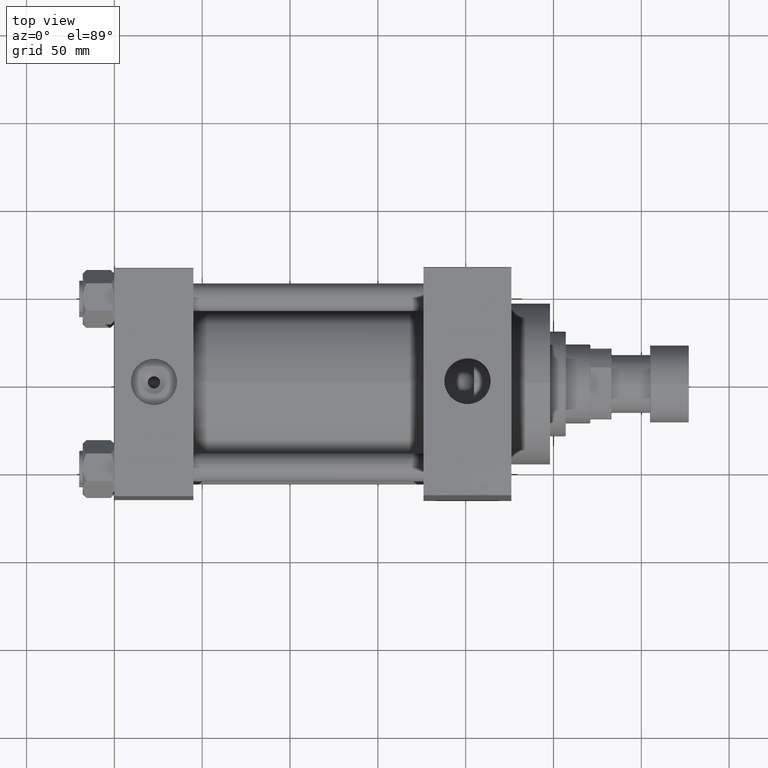
[diagram: clean part render]
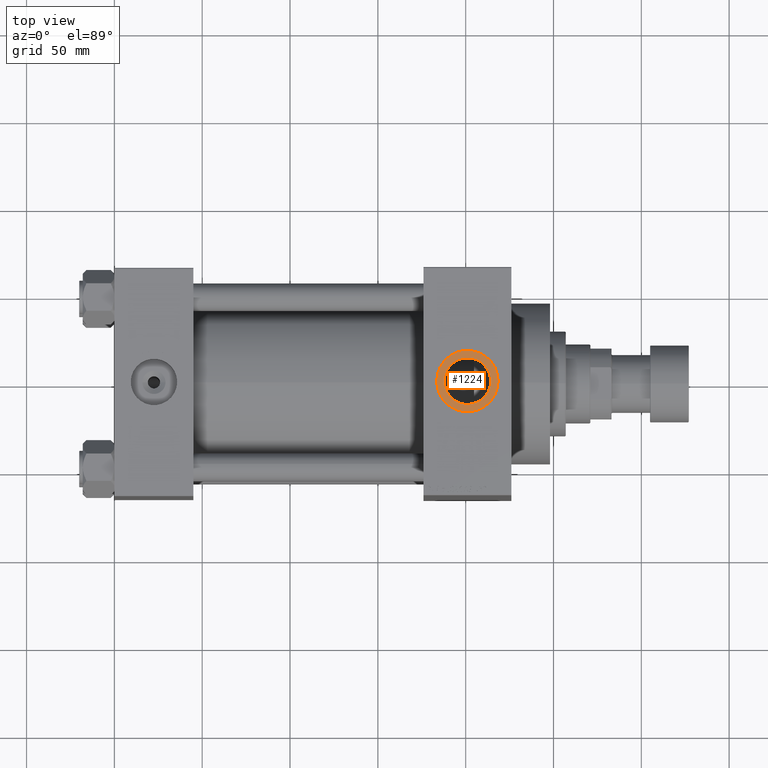
[diagram: same view with one face highlighted and labeled with its STEP entity id]
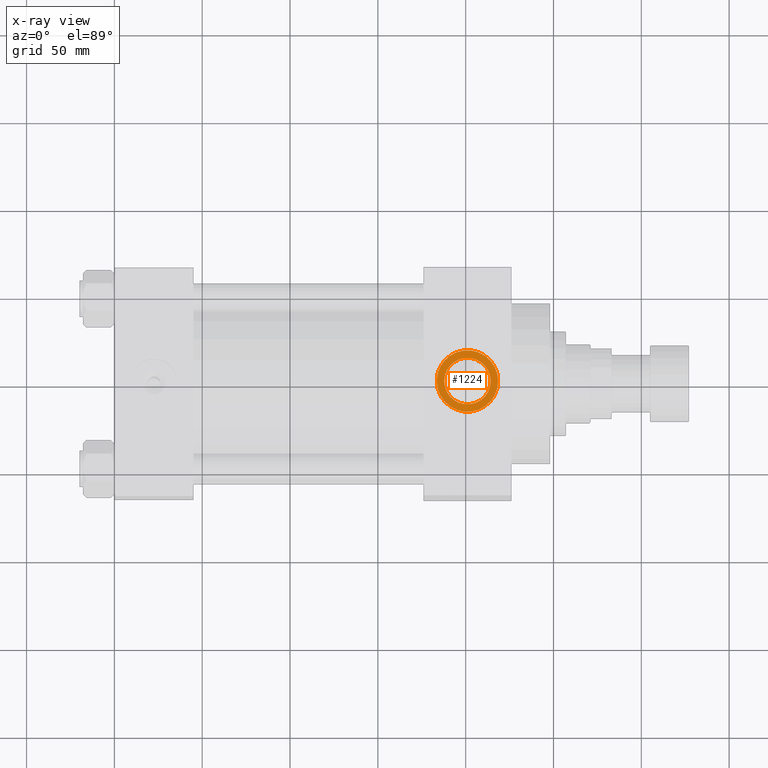
[diagram: x-ray of the same camera — body ghosted, the highlighted face saturated]
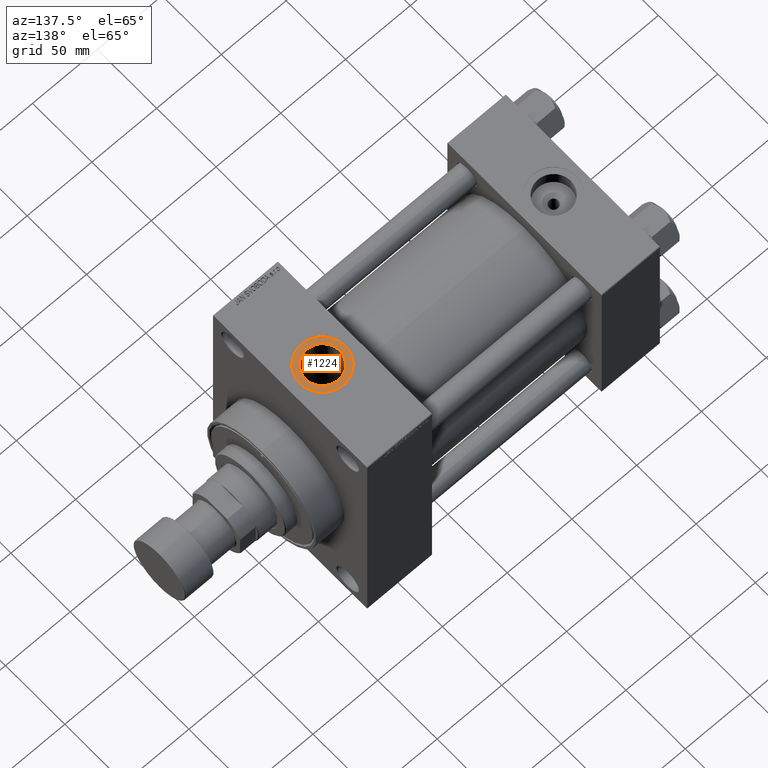
[diagram: same view with one face highlighted and labeled with its STEP entity id]
A machine part, top view. The second image highlights one B-rep face of the part: STEP entity #1224.
The next image is the same camera in x-ray: the body ghosted, the highlighted face saturated — about 0% of this face is hidden behind the body in this view.
A second angle (auxiliary view) of the same face is appended — the face is thin or edge-on in the first view.
In plain terms, the highlighted planar face has unit normal (0, 0, 1).
Its self-contained STEP definition (entity closure, byte-faithful):
#70 = CIRCLE ( 'NONE', #7863, 17.50000000000001421 ) ;
#719 = EDGE_CURVE ( 'NONE', #1223, #29764, #44450, .T. ) ;
#1026 = VERTEX_POINT ( 'NONE', #27738 ) ;
#1223 = VERTEX_POINT ( 'NONE', #15710 ) ;
#1224 = ADVANCED_FACE ( 'NONE', ( #16430, #12769 ), #27677, .T. ) ;
#3557 = EDGE_CURVE ( 'NONE', #29764, #1223, #70, .T. ) ;
#4115 = EDGE_LOOP ( 'NONE', ( #14655, #4687 ) ) ;
#4687 = ORIENTED_EDGE ( 'NONE', *, *, #30064, .T. ) ;
#5206 = CIRCLE ( 'NONE', #36437, 13.22000000000000952 ) ;
#5677 = VERTEX_POINT ( 'NONE', #30953 ) ;
#5852 = DIRECTION ( 'NONE',  ( 0.000000000000000000, 0.000000000000000000, 1.000000000000000000 ) ) ;
#7863 = AXIS2_PLACEMENT_3D ( 'NONE', #38812, #9001, #27573 ) ;
#9001 = DIRECTION ( 'NONE',  ( 0.000000000000000000, 0.000000000000000000, 1.000000000000000000 ) ) ;
#9030 = CARTESIAN_POINT ( 'NONE',  ( 200.9999999999999432, 0.000000000000000000, 94.79999999999996874 ) ) ;
#12769 = FACE_OUTER_BOUND ( 'NONE', #21031, .T. ) ;
#14053 = DIRECTION ( 'NONE',  ( -0.000000000000000000, -0.000000000000000000, -1.000000000000000000 ) ) ;
#14115 = AXIS2_PLACEMENT_3D ( 'NONE', #9030, #5852, #28084 ) ;
#14655 = ORIENTED_EDGE ( 'NONE', *, *, #34743, .T. ) ;
#15478 = DIRECTION ( 'NONE',  ( 1.000000000000000000, 0.000000000000000000, -0.000000000000000000 ) ) ;
#15648 = CARTESIAN_POINT ( 'NONE',  ( 200.9999999999999432, 0.000000000000000000, 94.79999999999996874 ) ) ;
#15710 = CARTESIAN_POINT ( 'NONE',  ( 218.4999999999999716, 0.000000000000000000, 94.79999999999996874 ) ) ;
#16430 = FACE_BOUND ( 'NONE', #4115, .T. ) ;
#16545 = ORIENTED_EDGE ( 'NONE', *, *, #719, .T. ) ;
#21031 = EDGE_LOOP ( 'NONE', ( #16545, #47508 ) ) ;
#27573 = DIRECTION ( 'NONE',  ( 1.000000000000000000, 0.000000000000000000, 0.000000000000000000 ) ) ;
#27677 = PLANE ( 'NONE',  #36665 ) ;
#27738 = CARTESIAN_POINT ( 'NONE',  ( 187.7799999999999443, 0.000000000000000000, 94.79999999999996874 ) ) ;
#28084 = DIRECTION ( 'NONE',  ( 1.000000000000000000, 0.000000000000000000, 0.000000000000000000 ) ) ;
#29764 = VERTEX_POINT ( 'NONE', #36337 ) ;
#30008 = AXIS2_PLACEMENT_3D ( 'NONE', #47526, #14053, #38968 ) ;
#30064 = EDGE_CURVE ( 'NONE', #5677, #1026, #34681, .T. ) ;
#30552 = DIRECTION ( 'NONE',  ( 1.000000000000000000, 0.000000000000000000, 0.000000000000000000 ) ) ;
#30953 = CARTESIAN_POINT ( 'NONE',  ( 214.2199999999999704, 1.618983068472802926E-15, 94.79999999999996874 ) ) ;
#34060 = DIRECTION ( 'NONE',  ( 0.000000000000000000, 0.000000000000000000, 1.000000000000000000 ) ) ;
#34681 = CIRCLE ( 'NONE', #30008, 13.22000000000000952 ) ;
#34743 = EDGE_CURVE ( 'NONE', #1026, #5677, #5206, .T. ) ;
#36337 = CARTESIAN_POINT ( 'NONE',  ( 183.4999999999999432, 2.143131898507871404E-15, 94.79999999999996874 ) ) ;
#36437 = AXIS2_PLACEMENT_3D ( 'NONE', #15648, #44325, #30552 ) ;
#36665 = AXIS2_PLACEMENT_3D ( 'NONE', #38910, #34060, #15478 ) ;
#38812 = CARTESIAN_POINT ( 'NONE',  ( 200.9999999999999432, 0.000000000000000000, 94.79999999999996874 ) ) ;
#38910 = CARTESIAN_POINT ( 'NONE',  ( 200.9999999999999432, 0.000000000000000000, 94.79999999999996874 ) ) ;
#38968 = DIRECTION ( 'NONE',  ( 1.000000000000000000, 0.000000000000000000, 0.000000000000000000 ) ) ;
#44325 = DIRECTION ( 'NONE',  ( -0.000000000000000000, -0.000000000000000000, -1.000000000000000000 ) ) ;
#44450 = CIRCLE ( 'NONE', #14115, 17.50000000000001421 ) ;
#47508 = ORIENTED_EDGE ( 'NONE', *, *, #3557, .T. ) ;
#47526 = CARTESIAN_POINT ( 'NONE',  ( 200.9999999999999432, 0.000000000000000000, 94.79999999999996874 ) ) ;